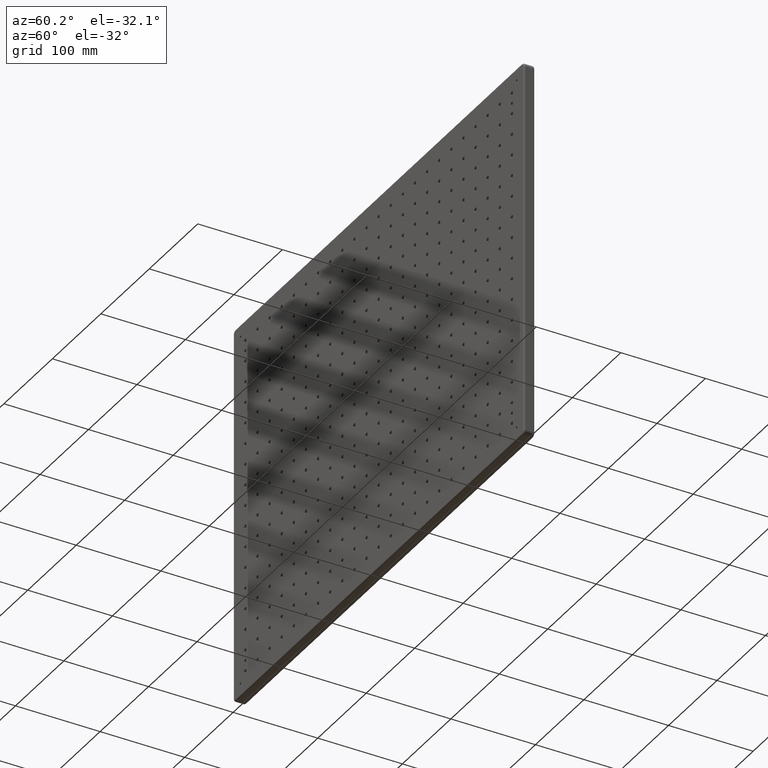
[diagram: clean part render]
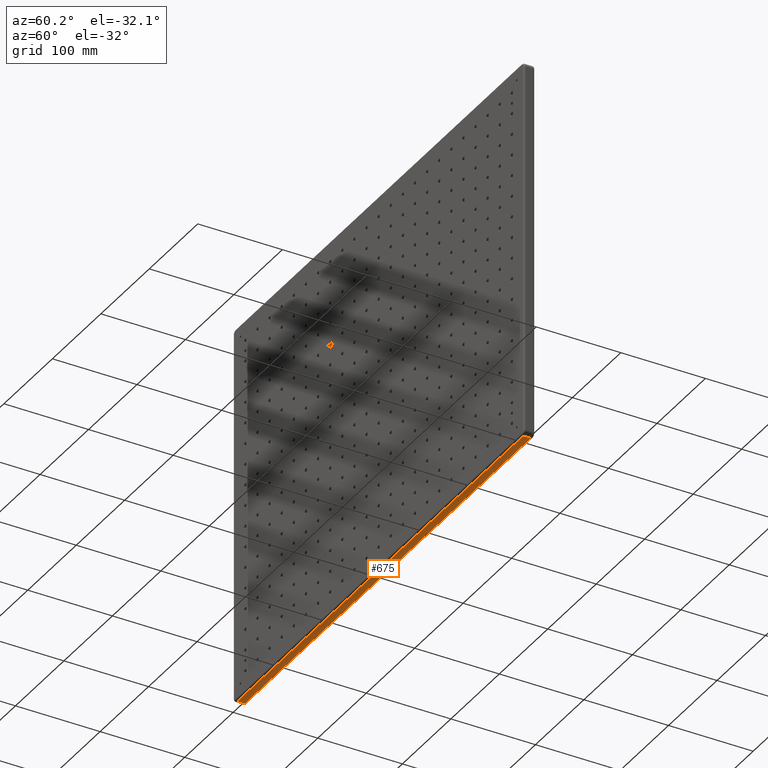
[diagram: same view with one face highlighted and labeled with its STEP entity id]
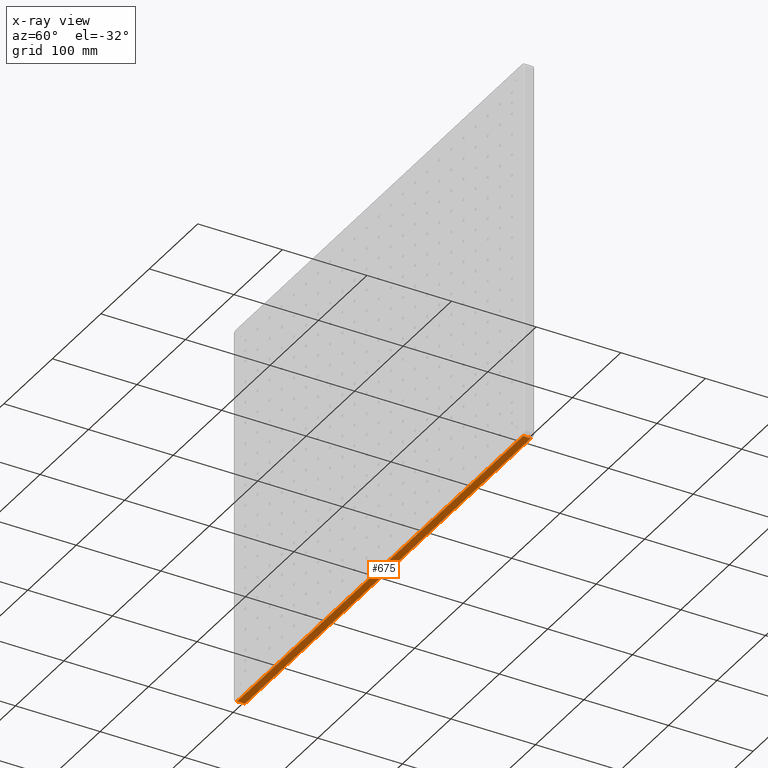
[diagram: x-ray of the same camera — body ghosted, the highlighted face saturated]
A machine part, auxiliary view. The second image highlights one B-rep face of the part: STEP entity #675.
The next image is the same camera in x-ray: the body ghosted, the highlighted face saturated — about 0% of this face is hidden behind the body in this view.
In plain terms, the highlighted planar face has unit normal (0, 0, 1).
Its self-contained STEP definition (entity closure, byte-faithful):
#93 = LINE ( 'NONE', #991, #4112 ) ;
#311 = AXIS2_PLACEMENT_3D ( 'NONE', #5838, #8523, #27447 ) ;
#675 = ADVANCED_FACE ( 'NONE', ( #29668 ), #24746, .F. ) ;
#991 = CARTESIAN_POINT ( 'NONE',  ( 295.0000000000000000, 11.00000000000000000, -225.0000000000000300 ) ) ;
#1028 = EDGE_CURVE ( 'NONE', #26770, #20843, #9279, .T. ) ;
#2826 = VECTOR ( 'NONE', #8571, 1000.000000000000000 ) ;
#4112 = VECTOR ( 'NONE', #19405, 1000.000000000000000 ) ;
#4652 = ORIENTED_EDGE ( 'NONE', *, *, #1028, .F. ) ;
#5838 = CARTESIAN_POINT ( 'NONE',  ( -295.0000000000000000, 13.00000000000000000, -225.0000000000000300 ) ) ;
#6715 = VECTOR ( 'NONE', #12303, 1000.000000000000000 ) ;
#8523 = DIRECTION ( 'NONE',  ( 0.0000000000000000000, 0.0000000000000000000, 1.000000000000000000 ) ) ;
#8571 = DIRECTION ( 'NONE',  ( -1.000000000000000000, 0.0000000000000000000, 0.0000000000000000000 ) ) ;
#8759 = CARTESIAN_POINT ( 'NONE',  ( -295.0000000000000000, 2.000000000000000000, -225.0000000000000300 ) ) ;
#9279 = LINE ( 'NONE', #26387, #6715 ) ;
#11569 = CARTESIAN_POINT ( 'NONE',  ( 295.0000000000000000, 13.00000000000000000, -225.0000000000000300 ) ) ;
#11990 = CARTESIAN_POINT ( 'NONE',  ( 295.0000000000000000, 11.00000000000000000, -225.0000000000000300 ) ) ;
#12303 = DIRECTION ( 'NONE',  ( -0.0000000000000000000, -1.000000000000000000, -0.0000000000000000000 ) ) ;
#13539 = DIRECTION ( 'NONE',  ( -0.0000000000000000000, -1.000000000000000000, -0.0000000000000000000 ) ) ;
#15432 = VERTEX_POINT ( 'NONE', #25133 ) ;
#16154 = LINE ( 'NONE', #11569, #29097 ) ;
#16497 = ORIENTED_EDGE ( 'NONE', *, *, #21502, .T. ) ;
#18525 = VERTEX_POINT ( 'NONE', #11990 ) ;
#18642 = ORIENTED_EDGE ( 'NONE', *, *, #20023, .T. ) ;
#19398 = ORIENTED_EDGE ( 'NONE', *, *, #27177, .T. ) ;
#19405 = DIRECTION ( 'NONE',  ( 1.000000000000000000, -0.0000000000000000000, -0.0000000000000000000 ) ) ;
#20023 = EDGE_CURVE ( 'NONE', #18525, #15432, #16154, .T. ) ;
#20843 = VERTEX_POINT ( 'NONE', #30600 ) ;
#21502 = EDGE_CURVE ( 'NONE', #26770, #18525, #93, .T. ) ;
#22285 = EDGE_LOOP ( 'NONE', ( #18642, #19398, #4652, #16497 ) ) ;
#24617 = LINE ( 'NONE', #8759, #2826 ) ;
#24746 = PLANE ( 'NONE',  #311 ) ;
#25133 = CARTESIAN_POINT ( 'NONE',  ( 295.0000000000000000, 2.000000000000001800, -225.0000000000000300 ) ) ;
#25643 = CARTESIAN_POINT ( 'NONE',  ( -295.0000000000000000, 11.00000000000000000, -225.0000000000000300 ) ) ;
#26387 = CARTESIAN_POINT ( 'NONE',  ( -295.0000000000000000, 13.00000000000000000, -225.0000000000000300 ) ) ;
#26770 = VERTEX_POINT ( 'NONE', #25643 ) ;
#27177 = EDGE_CURVE ( 'NONE', #15432, #20843, #24617, .T. ) ;
#27447 = DIRECTION ( 'NONE',  ( 1.000000000000000000, 0.0000000000000000000, -0.0000000000000000000 ) ) ;
#29097 = VECTOR ( 'NONE', #13539, 1000.000000000000000 ) ;
#29668 = FACE_OUTER_BOUND ( 'NONE', #22285, .T. ) ;
#30600 = CARTESIAN_POINT ( 'NONE',  ( -295.0000000000000000, 2.000000000000003600, -225.0000000000000300 ) ) ;